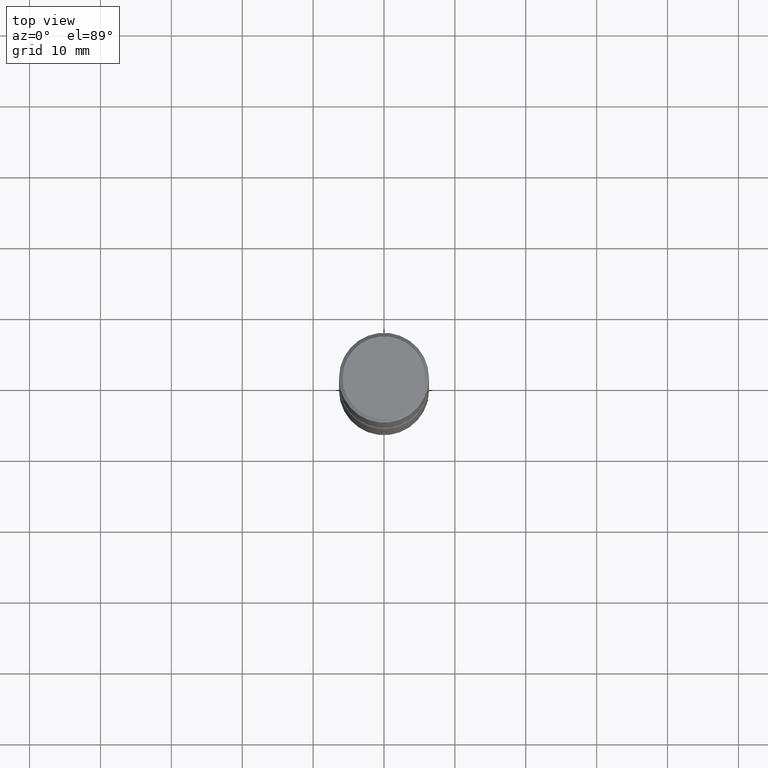
[diagram: clean part render]
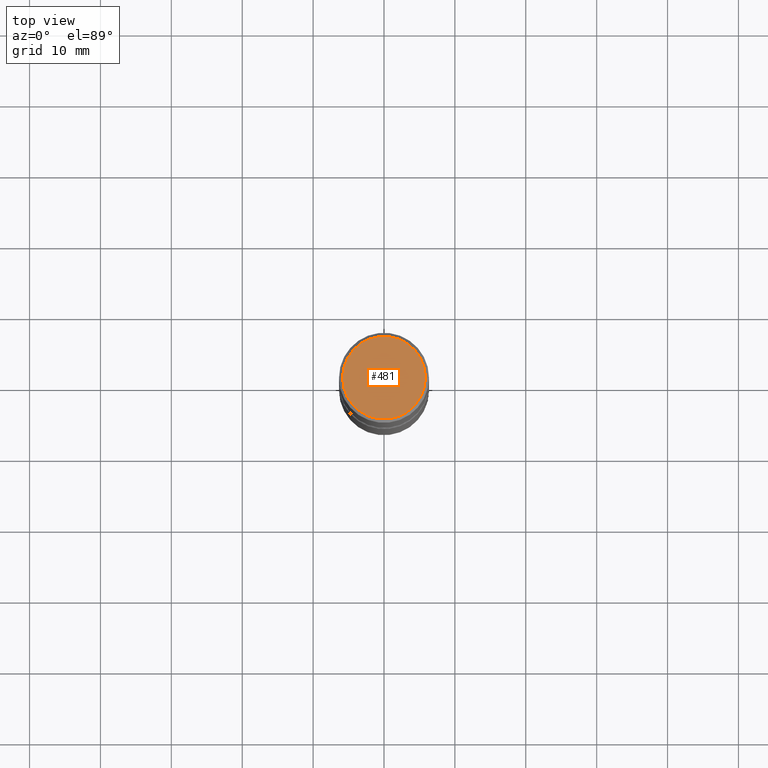
[diagram: same view with one face highlighted and labeled with its STEP entity id]
A machine part, top view. The second image highlights one B-rep face of the part: STEP entity #481.
In plain terms, the highlighted planar face has unit normal (0, -0, -1).
Its self-contained STEP definition (entity closure, byte-faithful):
#9 = DIRECTION ( 'NONE',  ( -2.445468806185136597E-29, 3.491481338843145583E-15, 1.000000000000000000 ) ) ;
#28 = VERTEX_POINT ( 'NONE', #211 ) ;
#62 = AXIS2_PLACEMENT_3D ( 'NONE', #321, #9, #533 ) ;
#111 = DIRECTION ( 'NONE',  ( -1.000000000000000000, 6.982962677686265922E-15, -4.876176775795935793E-29 ) ) ;
#114 = PLANE ( 'NONE',  #488 ) ;
#116 = CARTESIAN_POINT ( 'NONE',  ( -0.2300000000000002320, 1.640996229256274294E-15, -3.414809992081464243E-17 ) ) ;
#143 = VERTEX_POINT ( 'NONE', #116 ) ;
#211 = CARTESIAN_POINT ( 'NONE',  ( 0.2300000000000002320, -1.681434332853601180E-15, -3.414809992079179628E-17 ) ) ;
#212 = AXIS2_PLACEMENT_3D ( 'NONE', #390, #434, #549 ) ;
#253 = ORIENTED_EDGE ( 'NONE', *, *, #441, .T. ) ;
#267 = CIRCLE ( 'NONE', #212, 0.2300000000000002320 ) ;
#294 = CARTESIAN_POINT ( 'NONE',  ( 1.606081415867843039E-15, 0.2300000000000002320, -8.201147578943259875E-16 ) ) ;
#321 = CARTESIAN_POINT ( 'NONE',  ( 8.350811314681758556E-46, -1.192274536304357760E-31, -3.414809992080329023E-17 ) ) ;
#341 = FACE_OUTER_BOUND ( 'NONE', #509, .T. ) ;
#388 = CIRCLE ( 'NONE', #62, 0.2300000000000002320 ) ;
#390 = CARTESIAN_POINT ( 'NONE',  ( 8.350811314681758556E-46, -1.192274536304357760E-31, -3.414809992080329023E-17 ) ) ;
#401 = EDGE_CURVE ( 'NONE', #143, #28, #388, .T. ) ;
#434 = DIRECTION ( 'NONE',  ( -2.445468806185136597E-29, 3.491481338843145583E-15, 1.000000000000000000 ) ) ;
#441 = EDGE_CURVE ( 'NONE', #28, #143, #267, .T. ) ;
#469 = DIRECTION ( 'NONE',  ( 2.438088387897960049E-29, -3.491481338843145188E-15, -1.000000000000000000 ) ) ;
#481 = ADVANCED_FACE ( 'NONE', ( #341 ), #114, .F. ) ;
#488 = AXIS2_PLACEMENT_3D ( 'NONE', #294, #469, #111 ) ;
#509 = EDGE_LOOP ( 'NONE', ( #551, #253 ) ) ;
#533 = DIRECTION ( 'NONE',  ( 1.000000000000000000, -6.982962677686266711E-15, 4.875813741439094729E-29 ) ) ;
#549 = DIRECTION ( 'NONE',  ( 1.000000000000000000, -6.982962677686266711E-15, 4.875813741439094729E-29 ) ) ;
#551 = ORIENTED_EDGE ( 'NONE', *, *, #401, .T. ) ;